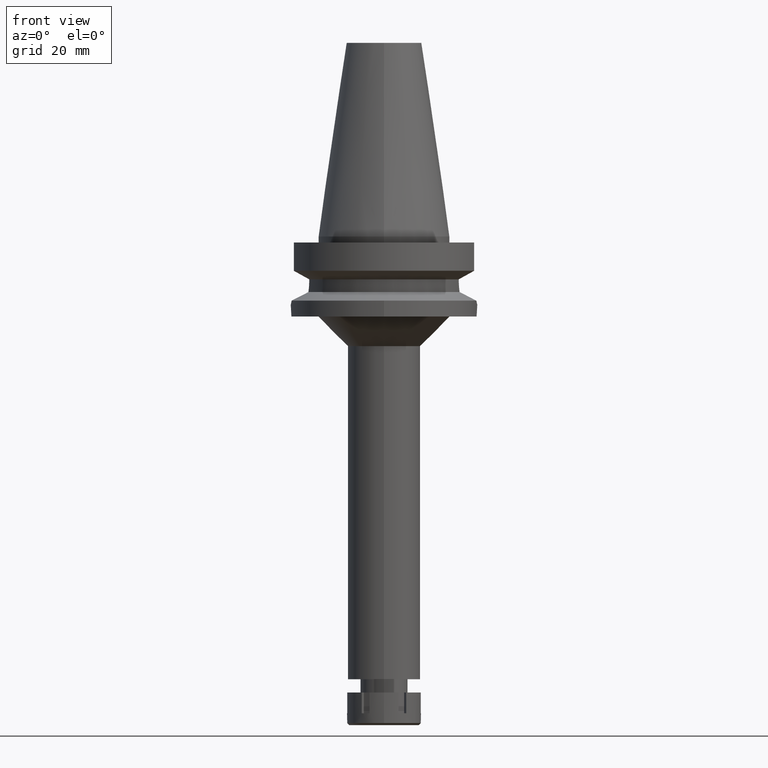
[diagram: clean part render]
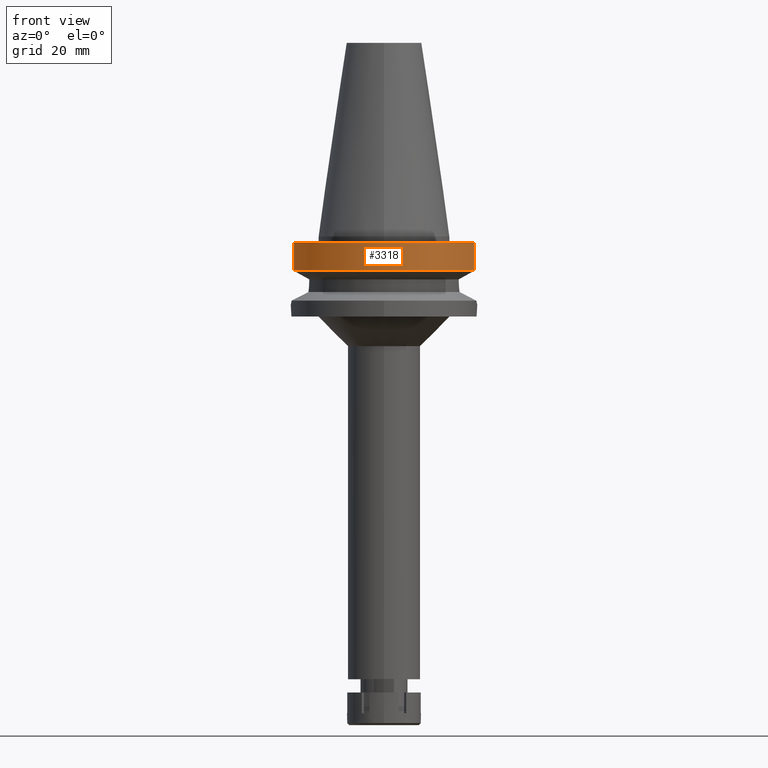
[diagram: same view with one face highlighted and labeled with its STEP entity id]
A machine part, front view. The second image highlights one B-rep face of the part: STEP entity #3318.
In plain terms, the highlighted cylindrical surface (partial cylindrical patch) has radius 31.5 mm, axis along (0, 0, -1).
Its self-contained STEP definition (entity closure, byte-faithful):
#21 = EDGE_CURVE ( 'NONE', #1878, #63, #283, .T. ) ;
#63 = VERTEX_POINT ( 'NONE', #1720 ) ;
#216 = ORIENTED_EDGE ( 'NONE', *, *, #3229, .F. ) ;
#219 = LINE ( 'NONE', #2448, #1795 ) ;
#240 = CARTESIAN_POINT ( 'NONE',  ( 0.0000000000000000000, 2.162971176654000071E-14, 76.61999999999999034 ) ) ;
#273 = FACE_OUTER_BOUND ( 'NONE', #650, .T. ) ;
#283 = CIRCLE ( 'NONE', #3166, 31.50000000000000000 ) ;
#292 = CARTESIAN_POINT ( 'NONE',  ( 30.45402272279000044, -8.050000000000000711, -2.000000000000000000 ) ) ;
#309 = DIRECTION ( 'NONE',  ( 0.0000000000000000000, 0.0000000000000000000, -1.000000000000000000 ) ) ;
#396 = AXIS2_PLACEMENT_3D ( 'NONE', #2131, #3233, #1872 ) ;
#650 = EDGE_LOOP ( 'NONE', ( #216, #3203, #2102, #2591 ) ) ;
#778 = DIRECTION ( 'NONE',  ( 0.0000000000000000000, -1.000000000000000000, 0.0000000000000000000 ) ) ;
#1432 = DIRECTION ( 'NONE',  ( 0.0000000000000000000, -1.000000000000000000, 0.0000000000000000000 ) ) ;
#1552 = CARTESIAN_POINT ( 'NONE',  ( 30.45402272279000044, -8.050000000000000711, -2.000000000000000000 ) ) ;
#1604 = CYLINDRICAL_SURFACE ( 'NONE', #2608, 31.50000000000000000 ) ;
#1718 = CARTESIAN_POINT ( 'NONE',  ( 0.0000000000000000000, 2.162971176654000071E-14, -2.000000000000000000 ) ) ;
#1720 = CARTESIAN_POINT ( 'NONE',  ( -30.45402272279000044, -8.050000000000000711, -2.000000000000000000 ) ) ;
#1795 = VECTOR ( 'NONE', #2529, 1000.000000000000227 ) ;
#1807 = LINE ( 'NONE', #1552, #1920 ) ;
#1872 = DIRECTION ( 'NONE',  ( 0.0000000000000000000, -1.000000000000000000, 0.0000000000000000000 ) ) ;
#1878 = VERTEX_POINT ( 'NONE', #292 ) ;
#1920 = VECTOR ( 'NONE', #2988, 999.9999999999998863 ) ;
#2102 = ORIENTED_EDGE ( 'NONE', *, *, #3138, .F. ) ;
#2131 = CARTESIAN_POINT ( 'NONE',  ( 0.0000000000000000000, 1.065333950388000029E-14, -11.56550565266999975 ) ) ;
#2448 = CARTESIAN_POINT ( 'NONE',  ( -30.45402291358000113, -8.049999278195999253, -11.56551215380000031 ) ) ;
#2529 = DIRECTION ( 'NONE',  ( 1.994621289529988906E-08, -7.545894673464957228E-08, 0.9999999999999968914 ) ) ;
#2591 = ORIENTED_EDGE ( 'NONE', *, *, #21, .T. ) ;
#2608 = AXIS2_PLACEMENT_3D ( 'NONE', #240, #3301, #778 ) ;
#2642 = EDGE_CURVE ( 'NONE', #2777, #2800, #3646, .T. ) ;
#2777 = VERTEX_POINT ( 'NONE', #2790 ) ;
#2790 = CARTESIAN_POINT ( 'NONE',  ( -30.45402291358000113, -8.049999278195999253, -11.56551215380000031 ) ) ;
#2800 = VERTEX_POINT ( 'NONE', #3361 ) ;
#2988 = DIRECTION ( 'NONE',  ( -1.145023312779999569E-07, -4.331741411846998158E-07, -0.9999999999998997469 ) ) ;
#3138 = EDGE_CURVE ( 'NONE', #1878, #2800, #1807, .T. ) ;
#3166 = AXIS2_PLACEMENT_3D ( 'NONE', #1718, #309, #1432 ) ;
#3203 = ORIENTED_EDGE ( 'NONE', *, *, #2642, .T. ) ;
#3229 = EDGE_CURVE ( 'NONE', #2777, #63, #219, .T. ) ;
#3233 = DIRECTION ( 'NONE',  ( 0.0000000000000000000, 0.0000000000000000000, 1.000000000000000000 ) ) ;
#3301 = DIRECTION ( 'NONE',  ( 0.0000000000000000000, 0.0000000000000000000, -1.000000000000000000 ) ) ;
#3318 = ADVANCED_FACE ( 'NONE', ( #273 ), #1604, .T. ) ;
#3361 = CARTESIAN_POINT ( 'NONE',  ( 30.45402272279000044, -8.049999999999000622, -11.56550565266999975 ) ) ;
#3646 = CIRCLE ( 'NONE', #396, 31.50000000000000000 ) ;